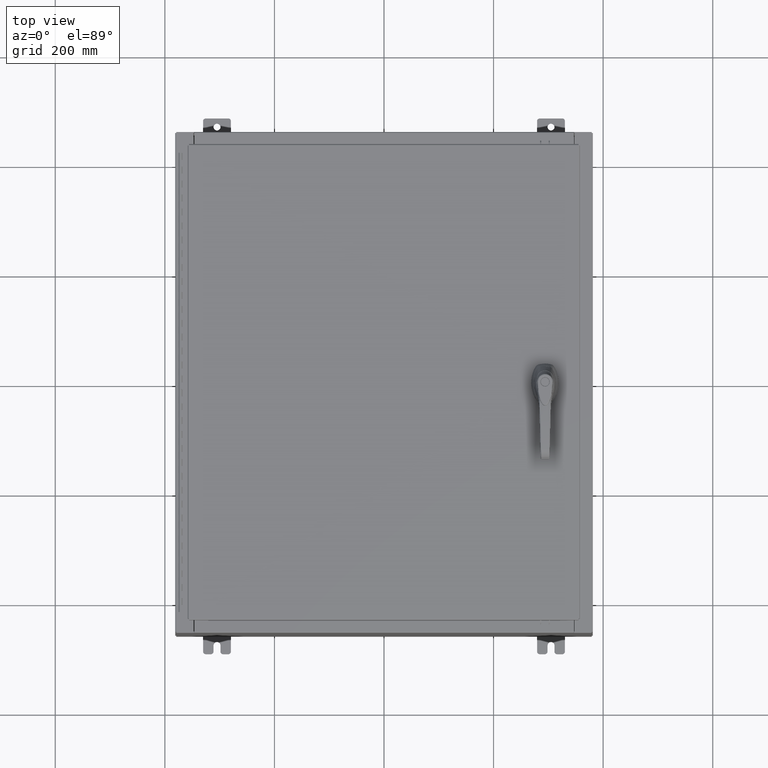
[diagram: clean part render]
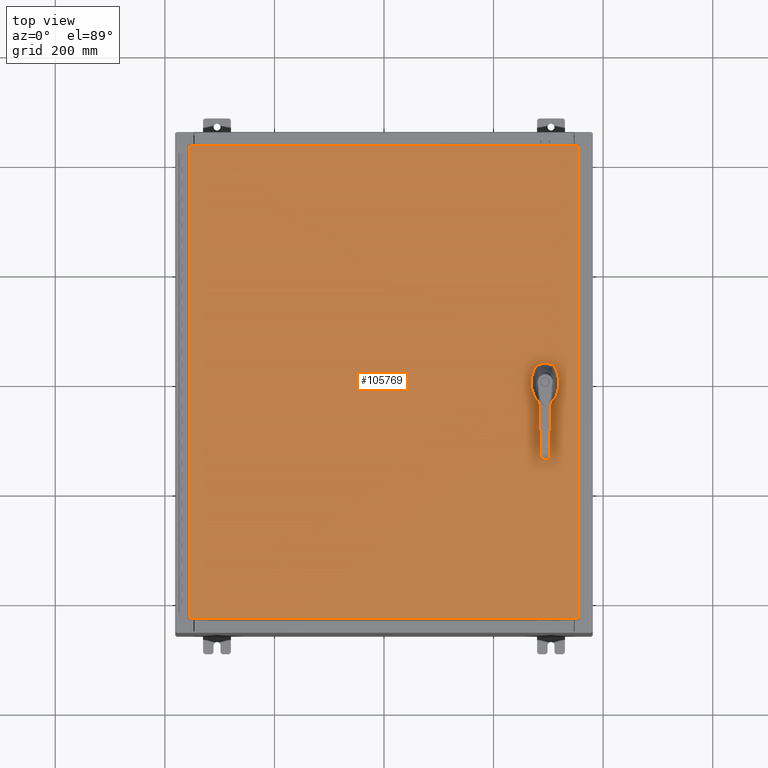
[diagram: same view with one face highlighted and labeled with its STEP entity id]
A machine part, top view. The second image highlights one B-rep face of the part: STEP entity #105769.
In plain terms, the highlighted planar face has unit normal (0, 0, -1).
Its self-contained STEP definition (entity closure, byte-faithful):
#126 = CARTESIAN_POINT ( 'NONE',  ( 11.17500000000006600, -0.2002273707563079800, 0.0000000000000000000 ) ) ;
#556 = FACE_BOUND ( 'NONE', #56074, .T. ) ;
#1692 = CARTESIAN_POINT ( 'NONE',  ( -13.99030000000000700, -17.00630000000000000, -2.048885995248197400E-016 ) ) ;
#2560 = ORIENTED_EDGE ( 'NONE', *, *, #62076, .T. ) ;
#5211 = VERTEX_POINT ( 'NONE', #38734 ) ;
#5795 = VECTOR ( 'NONE', #32875, 39.37007874015748100 ) ;
#6246 = EDGE_CURVE ( 'NONE', #39624, #5211, #120633, .T. ) ;
#6782 = CARTESIAN_POINT ( 'NONE',  ( 13.99029999999999200, 17.00630000000000300, -1.297627796990525000E-015 ) ) ;
#6929 = EDGE_CURVE ( 'NONE', #70725, #9063, #45773, .T. ) ;
#7219 = CARTESIAN_POINT ( 'NONE',  ( 11.77822737075630300, -0.4029999999999252000, 0.0000000000000000000 ) ) ;
#8468 = CARTESIAN_POINT ( 'NONE',  ( 11.57799999999999400, 0.0000000000000000000, 0.0000000000000000000 ) ) ;
#8962 = ORIENTED_EDGE ( 'NONE', *, *, #17897, .F. ) ;
#9063 = VERTEX_POINT ( 'NONE', #45482 ) ;
#9277 = LINE ( 'NONE', #47484, #12281 ) ;
#10837 = ORIENTED_EDGE ( 'NONE', *, *, #124286, .F. ) ;
#11400 = VERTEX_POINT ( 'NONE', #124023 ) ;
#11404 = LINE ( 'NONE', #30792, #110229 ) ;
#12281 = VECTOR ( 'NONE', #100175, 39.37007874015748100 ) ;
#13102 = CARTESIAN_POINT ( 'NONE',  ( 0.0000000000000000000, -0.4029999999999252000, 0.0000000000000000000 ) ) ;
#13407 = EDGE_CURVE ( 'NONE', #13466, #30621, #42127, .T. ) ;
#13466 = VERTEX_POINT ( 'NONE', #75778 ) ;
#13518 = CARTESIAN_POINT ( 'NONE',  ( 11.17500000000006600, 0.0000000000000000000, 0.0000000000000000000 ) ) ;
#13536 = ORIENTED_EDGE ( 'NONE', *, *, #116710, .T. ) ;
#13853 = DIRECTION ( 'NONE',  ( 1.000000000000000000, 0.0000000000000000000, 0.0000000000000000000 ) ) ;
#13998 = DIRECTION ( 'NONE',  ( -0.0000000000000000000, 0.0000000000000000000, 1.000000000000000000 ) ) ;
#14168 = PLANE ( 'NONE',  #59440 ) ;
#14539 = EDGE_CURVE ( 'NONE', #32728, #43617, #119883, .T. ) ;
#14872 = CARTESIAN_POINT ( 'NONE',  ( 11.57799999999999400, -1.338000000000000100, 0.0000000000000000000 ) ) ;
#15430 = CIRCLE ( 'NONE', #77223, 0.4499999999999168000 ) ;
#15547 = CARTESIAN_POINT ( 'NONE',  ( 13.99029999999999200, 17.00630000000000300, -1.297627796990525000E-015 ) ) ;
#16269 = ORIENTED_EDGE ( 'NONE', *, *, #14539, .F. ) ;
#16748 = VECTOR ( 'NONE', #78338, 39.37007874015748100 ) ;
#17897 = EDGE_CURVE ( 'NONE', #43617, #42240, #50527, .T. ) ;
#18226 = DIRECTION ( 'NONE',  ( 1.000000000000000000, 0.0000000000000000000, 0.0000000000000000000 ) ) ;
#20980 = ORIENTED_EDGE ( 'NONE', *, *, #13407, .F. ) ;
#21075 = ORIENTED_EDGE ( 'NONE', *, *, #6929, .F. ) ;
#22563 = EDGE_CURVE ( 'NONE', #105078, #5211, #73801, .T. ) ;
#24583 = VERTEX_POINT ( 'NONE', #99529 ) ;
#30400 = CARTESIAN_POINT ( 'NONE',  ( 11.57799999999999400, 0.0000000000000000000, 0.0000000000000000000 ) ) ;
#30621 = VERTEX_POINT ( 'NONE', #100645 ) ;
#30792 = CARTESIAN_POINT ( 'NONE',  ( 13.99029999999999200, -17.00630000000000000, -2.048885995248197400E-016 ) ) ;
#32168 = VECTOR ( 'NONE', #82530, 39.37007874015748100 ) ;
#32728 = VERTEX_POINT ( 'NONE', #120166 ) ;
#32875 = DIRECTION ( 'NONE',  ( 1.000000000000000000, 0.0000000000000000000, 0.0000000000000000000 ) ) ;
#35588 = EDGE_LOOP ( 'NONE', ( #10837, #21075 ) ) ;
#36080 = ORIENTED_EDGE ( 'NONE', *, *, #22563, .T. ) ;
#37669 = CARTESIAN_POINT ( 'NONE',  ( 11.57799999999999400, 0.0000000000000000000, 0.0000000000000000000 ) ) ;
#38029 = VERTEX_POINT ( 'NONE', #6782 ) ;
#38208 = EDGE_CURVE ( 'NONE', #105078, #13466, #59712, .T. ) ;
#38734 = CARTESIAN_POINT ( 'NONE',  ( 11.98099999999992200, -0.2002273707563079800, 0.0000000000000000000 ) ) ;
#39624 = VERTEX_POINT ( 'NONE', #7219 ) ;
#39940 = DIRECTION ( 'NONE',  ( 1.000000000000000000, 0.0000000000000000000, 0.0000000000000000000 ) ) ;
#40104 = LINE ( 'NONE', #43434, #113428 ) ;
#40483 = VECTOR ( 'NONE', #70860, 39.37007874015748100 ) ;
#41241 = EDGE_LOOP ( 'NONE', ( #103264, #13536, #2560, #44685 ) ) ;
#42127 = LINE ( 'NONE', #79913, #16748 ) ;
#42240 = VERTEX_POINT ( 'NONE', #57727 ) ;
#43434 = CARTESIAN_POINT ( 'NONE',  ( -13.99030000000000700, -17.00630000000000000, -2.048885995248197400E-016 ) ) ;
#43617 = VERTEX_POINT ( 'NONE', #126 ) ;
#44685 = ORIENTED_EDGE ( 'NONE', *, *, #46651, .T. ) ;
#45482 = CARTESIAN_POINT ( 'NONE',  ( 11.74949999999999400, -1.338000000000000100, 0.0000000000000000000 ) ) ;
#45653 = FACE_BOUND ( 'NONE', #35588, .T. ) ;
#45773 = CIRCLE ( 'NONE', #116322, 0.1715000000000011500 ) ;
#46651 = EDGE_CURVE ( 'NONE', #11400, #92393, #9277, .T. ) ;
#47197 = DIRECTION ( 'NONE',  ( 1.000000000000000000, 0.0000000000000000000, 0.0000000000000000000 ) ) ;
#47484 = CARTESIAN_POINT ( 'NONE',  ( -13.99030000000000700, 17.00630000000000000, -2.048885995248197400E-016 ) ) ;
#48664 = EDGE_CURVE ( 'NONE', #92393, #24583, #40104, .T. ) ;
#50447 = DIRECTION ( 'NONE',  ( 5.457491617345625800E-015, -1.000000000000000000, 0.0000000000000000000 ) ) ;
#50527 = CIRCLE ( 'NONE', #85972, 0.4499999999999168000 ) ;
#54584 = CARTESIAN_POINT ( 'NONE',  ( 11.98099999999992000, 0.2002273707563075900, 0.0000000000000000000 ) ) ;
#55646 = DIRECTION ( 'NONE',  ( -0.0000000000000000000, 0.0000000000000000000, 1.000000000000000000 ) ) ;
#56074 = EDGE_LOOP ( 'NONE', ( #36080, #86863, #58495, #8962, #16269, #106377, #20980, #107777 ) ) ;
#57727 = CARTESIAN_POINT ( 'NONE',  ( 11.37777262924368300, -0.4029999999999252000, 0.0000000000000000000 ) ) ;
#57945 = AXIS2_PLACEMENT_3D ( 'NONE', #112933, #55646, #122691 ) ;
#58495 = ORIENTED_EDGE ( 'NONE', *, *, #74434, .F. ) ;
#59440 = AXIS2_PLACEMENT_3D ( 'NONE', #81155, #109527, #90791 ) ;
#59712 = CIRCLE ( 'NONE', #61794, 0.4499999999999168000 ) ;
#61794 = AXIS2_PLACEMENT_3D ( 'NONE', #8468, #75532, #18226 ) ;
#62076 = EDGE_CURVE ( 'NONE', #38029, #11400, #89028, .T. ) ;
#70725 = VERTEX_POINT ( 'NONE', #98530 ) ;
#70860 = DIRECTION ( 'NONE',  ( 0.0000000000000000000, -1.000000000000000000, 0.0000000000000000000 ) ) ;
#71136 = FACE_OUTER_BOUND ( 'NONE', #41241, .T. ) ;
#72320 = CIRCLE ( 'NONE', #57945, 0.1715000000000011500 ) ;
#73801 = LINE ( 'NONE', #117444, #121780 ) ;
#74434 = EDGE_CURVE ( 'NONE', #42240, #39624, #110740, .T. ) ;
#75532 = DIRECTION ( 'NONE',  ( -0.0000000000000000000, 0.0000000000000000000, 1.000000000000000000 ) ) ;
#75778 = CARTESIAN_POINT ( 'NONE',  ( 11.77822737075630300, 0.4029999999999252000, 0.0000000000000000000 ) ) ;
#77223 = AXIS2_PLACEMENT_3D ( 'NONE', #37669, #104556, #47197 ) ;
#78338 = DIRECTION ( 'NONE',  ( -1.000000000000000000, 0.0000000000000000000, 0.0000000000000000000 ) ) ;
#78430 = DIRECTION ( 'NONE',  ( 0.0000000000000000000, 1.000000000000000000, 0.0000000000000000000 ) ) ;
#79913 = CARTESIAN_POINT ( 'NONE',  ( 0.0000000000000000000, 0.4029999999999252000, 0.0000000000000000000 ) ) ;
#81155 = CARTESIAN_POINT ( 'NONE',  ( 0.0000000000000000000, 0.0000000000000000000, 0.0000000000000000000 ) ) ;
#82530 = DIRECTION ( 'NONE',  ( -1.000000000000000000, -0.0000000000000000000, -0.0000000000000000000 ) ) ;
#85972 = AXIS2_PLACEMENT_3D ( 'NONE', #30400, #97254, #39940 ) ;
#86863 = ORIENTED_EDGE ( 'NONE', *, *, #6246, .F. ) ;
#89028 = LINE ( 'NONE', #15547, #32168 ) ;
#90757 = DIRECTION ( 'NONE',  ( 1.000000000000000000, -0.0000000000000000000, -0.0000000000000000000 ) ) ;
#90791 = DIRECTION ( 'NONE',  ( -1.000000000000000000, 0.0000000000000000000, -0.0000000000000000000 ) ) ;
#92393 = VERTEX_POINT ( 'NONE', #1692 ) ;
#97254 = DIRECTION ( 'NONE',  ( -0.0000000000000000000, 0.0000000000000000000, 1.000000000000000000 ) ) ;
#98530 = CARTESIAN_POINT ( 'NONE',  ( 11.40649999999999200, -1.338000000000000100, 0.0000000000000000000 ) ) ;
#99529 = CARTESIAN_POINT ( 'NONE',  ( 13.99029999999999200, -17.00630000000000000, -2.048885995248197400E-016 ) ) ;
#100175 = DIRECTION ( 'NONE',  ( 0.0000000000000000000, -1.000000000000000000, 0.0000000000000000000 ) ) ;
#100645 = CARTESIAN_POINT ( 'NONE',  ( 11.37777262924368300, 0.4029999999999252000, 0.0000000000000000000 ) ) ;
#101834 = AXIS2_PLACEMENT_3D ( 'NONE', #107348, #114121, #109940 ) ;
#103264 = ORIENTED_EDGE ( 'NONE', *, *, #48664, .T. ) ;
#104556 = DIRECTION ( 'NONE',  ( -0.0000000000000000000, 0.0000000000000000000, 1.000000000000000000 ) ) ;
#105078 = VERTEX_POINT ( 'NONE', #54584 ) ;
#105769 = ADVANCED_FACE ( 'NONE', ( #45653, #71136, #556 ), #14168, .F. ) ;
#106377 = ORIENTED_EDGE ( 'NONE', *, *, #124404, .F. ) ;
#107348 = CARTESIAN_POINT ( 'NONE',  ( 11.57799999999999400, 0.0000000000000000000, 0.0000000000000000000 ) ) ;
#107777 = ORIENTED_EDGE ( 'NONE', *, *, #38208, .F. ) ;
#109527 = DIRECTION ( 'NONE',  ( 0.0000000000000000000, 0.0000000000000000000, -1.000000000000000000 ) ) ;
#109940 = DIRECTION ( 'NONE',  ( 1.000000000000000000, 0.0000000000000000000, 0.0000000000000000000 ) ) ;
#110229 = VECTOR ( 'NONE', #78430, 39.37007874015748100 ) ;
#110740 = LINE ( 'NONE', #13102, #5795 ) ;
#112933 = CARTESIAN_POINT ( 'NONE',  ( 11.57799999999999400, -1.338000000000000100, 0.0000000000000000000 ) ) ;
#113428 = VECTOR ( 'NONE', #90757, 39.37007874015748100 ) ;
#114121 = DIRECTION ( 'NONE',  ( -0.0000000000000000000, 0.0000000000000000000, 1.000000000000000000 ) ) ;
#116322 = AXIS2_PLACEMENT_3D ( 'NONE', #14872, #13998, #13853 ) ;
#116710 = EDGE_CURVE ( 'NONE', #24583, #38029, #11404, .T. ) ;
#117444 = CARTESIAN_POINT ( 'NONE',  ( 11.98099999999992000, 6.538620706741751200E-014, 0.0000000000000000000 ) ) ;
#119883 = LINE ( 'NONE', #13518, #40483 ) ;
#120166 = CARTESIAN_POINT ( 'NONE',  ( 11.17500000000006600, 0.2002273707563079800, 0.0000000000000000000 ) ) ;
#120633 = CIRCLE ( 'NONE', #101834, 0.4499999999999168000 ) ;
#121780 = VECTOR ( 'NONE', #50447, 39.37007874015748100 ) ;
#122691 = DIRECTION ( 'NONE',  ( 1.000000000000000000, 0.0000000000000000000, 0.0000000000000000000 ) ) ;
#124023 = CARTESIAN_POINT ( 'NONE',  ( -13.99030000000000700, 17.00630000000000000, -2.048885995248197400E-016 ) ) ;
#124286 = EDGE_CURVE ( 'NONE', #9063, #70725, #72320, .T. ) ;
#124404 = EDGE_CURVE ( 'NONE', #30621, #32728, #15430, .T. ) ;